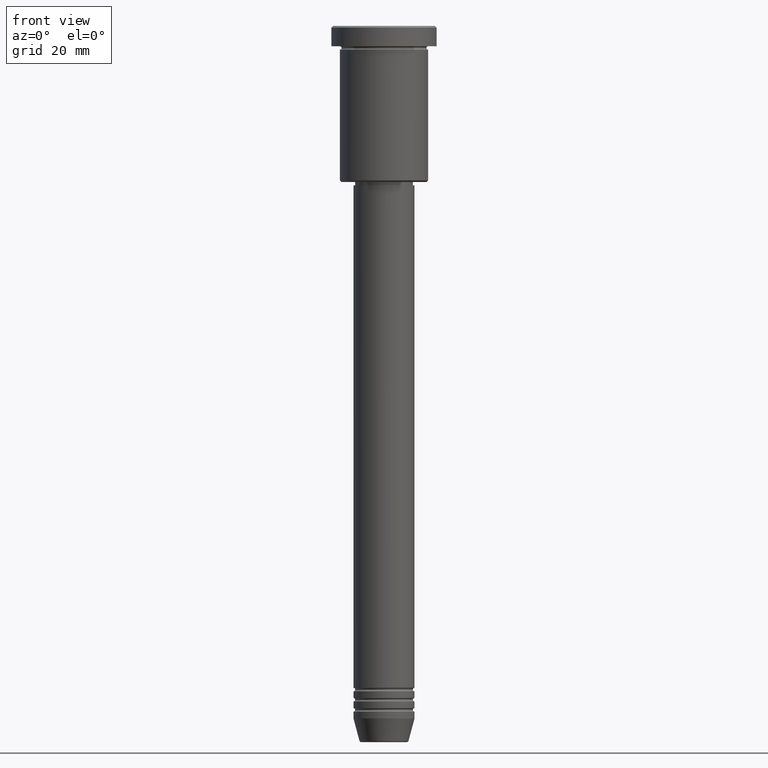
[diagram: clean part render]
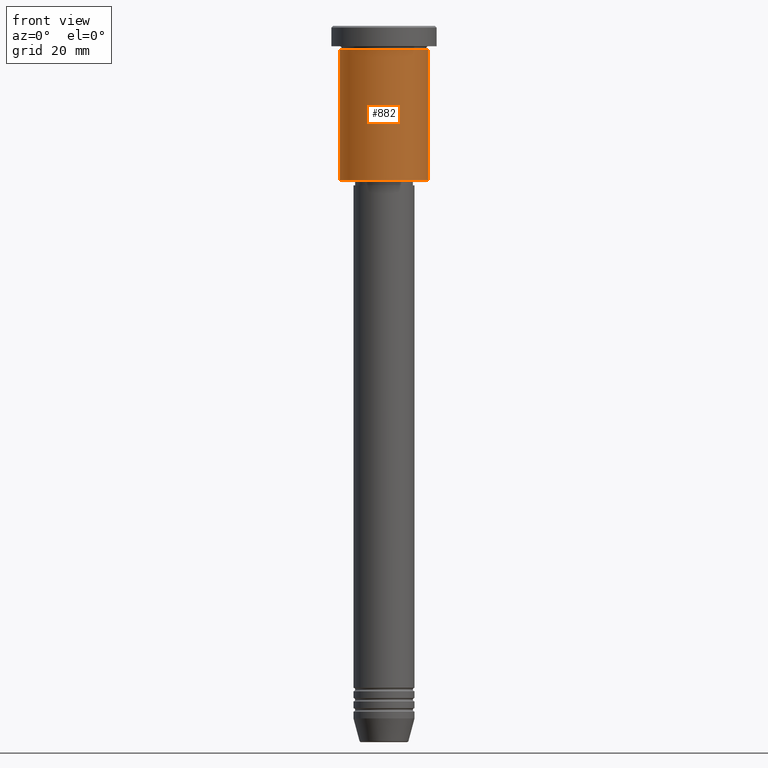
[diagram: same view with one face highlighted and labeled with its STEP entity id]
A machine part, front view. The second image highlights one B-rep face of the part: STEP entity #882.
In plain terms, the highlighted cylindrical surface (partial cylindrical patch) has radius 13 mm, axis along (-0, -0, 1).
Its self-contained STEP definition (entity closure, byte-faithful):
#7 = ORIENTED_EDGE ( 'NONE', *, *, #346, .T. ) ;
#65 = AXIS2_PLACEMENT_3D ( 'NONE', #243, #694, #1150 ) ;
#71 = FACE_OUTER_BOUND ( 'NONE', #1037, .T. ) ;
#81 = CYLINDRICAL_SURFACE ( 'NONE', #780, 13.00000000000000000 ) ;
#103 = ORIENTED_EDGE ( 'NONE', *, *, #1097, .T. ) ;
#136 = DIRECTION ( 'NONE',  ( -0.000000000000000000, -0.000000000000000000, 1.000000000000000000 ) ) ;
#176 = EDGE_CURVE ( 'NONE', #665, #591, #499, .T. ) ;
#191 = CARTESIAN_POINT ( 'NONE',  ( -13.00000000000000000, 1.592040838891559095E-15, 0.000000000000000000 ) ) ;
#218 = CARTESIAN_POINT ( 'NONE',  ( 13.00000000000000000, 0.000000000000000000, -45.49999999999998579 ) ) ;
#243 = CARTESIAN_POINT ( 'NONE',  ( 0.000000000000000000, 0.000000000000000000, -6.999999999999995559 ) ) ;
#254 = VECTOR ( 'NONE', #562, 1000.000000000000000 ) ;
#262 = DIRECTION ( 'NONE',  ( 1.000000000000000000, 0.000000000000000000, 0.000000000000000000 ) ) ;
#346 = EDGE_CURVE ( 'NONE', #576, #1108, #509, .T. ) ;
#387 = ORIENTED_EDGE ( 'NONE', *, *, #817, .F. ) ;
#410 = CARTESIAN_POINT ( 'NONE',  ( 0.000000000000000000, 0.000000000000000000, -45.49999999999998579 ) ) ;
#499 = LINE ( 'NONE', #191, #254 ) ;
#503 = CARTESIAN_POINT ( 'NONE',  ( -13.00000000000000000, 1.592040838891559095E-15, -45.49999999999998579 ) ) ;
#509 = LINE ( 'NONE', #1148, #717 ) ;
#516 = CIRCLE ( 'NONE', #65, 13.00000000000000000 ) ;
#543 = DIRECTION ( 'NONE',  ( -0.000000000000000000, -0.000000000000000000, 1.000000000000000000 ) ) ;
#557 = CARTESIAN_POINT ( 'NONE',  ( 0.000000000000000000, 0.000000000000000000, 0.000000000000000000 ) ) ;
#560 = DIRECTION ( 'NONE',  ( -1.000000000000000000, 0.000000000000000000, 0.000000000000000000 ) ) ;
#562 = DIRECTION ( 'NONE',  ( -0.000000000000000000, -0.000000000000000000, 1.000000000000000000 ) ) ;
#576 = VERTEX_POINT ( 'NONE', #218 ) ;
#591 = VERTEX_POINT ( 'NONE', #937 ) ;
#665 = VERTEX_POINT ( 'NONE', #503 ) ;
#694 = DIRECTION ( 'NONE',  ( -0.000000000000000000, -0.000000000000000000, 1.000000000000000000 ) ) ;
#717 = VECTOR ( 'NONE', #974, 1000.000000000000000 ) ;
#780 = AXIS2_PLACEMENT_3D ( 'NONE', #557, #543, #262 ) ;
#817 = EDGE_CURVE ( 'NONE', #591, #1108, #516, .T. ) ;
#882 = ADVANCED_FACE ( 'NONE', ( #71 ), #81, .T. ) ;
#894 = AXIS2_PLACEMENT_3D ( 'NONE', #410, #136, #560 ) ;
#921 = CIRCLE ( 'NONE', #894, 13.00000000000000000 ) ;
#937 = CARTESIAN_POINT ( 'NONE',  ( -13.00000000000000000, 1.592040838891559095E-15, -6.999999999999995559 ) ) ;
#950 = CARTESIAN_POINT ( 'NONE',  ( 13.00000000000000000, 0.000000000000000000, -6.999999999999995559 ) ) ;
#974 = DIRECTION ( 'NONE',  ( -0.000000000000000000, -0.000000000000000000, 1.000000000000000000 ) ) ;
#999 = ORIENTED_EDGE ( 'NONE', *, *, #176, .F. ) ;
#1037 = EDGE_LOOP ( 'NONE', ( #999, #103, #7, #387 ) ) ;
#1097 = EDGE_CURVE ( 'NONE', #665, #576, #921, .T. ) ;
#1108 = VERTEX_POINT ( 'NONE', #950 ) ;
#1148 = CARTESIAN_POINT ( 'NONE',  ( 13.00000000000000000, 0.000000000000000000, 0.000000000000000000 ) ) ;
#1150 = DIRECTION ( 'NONE',  ( 1.000000000000000000, 0.000000000000000000, 0.000000000000000000 ) ) ;